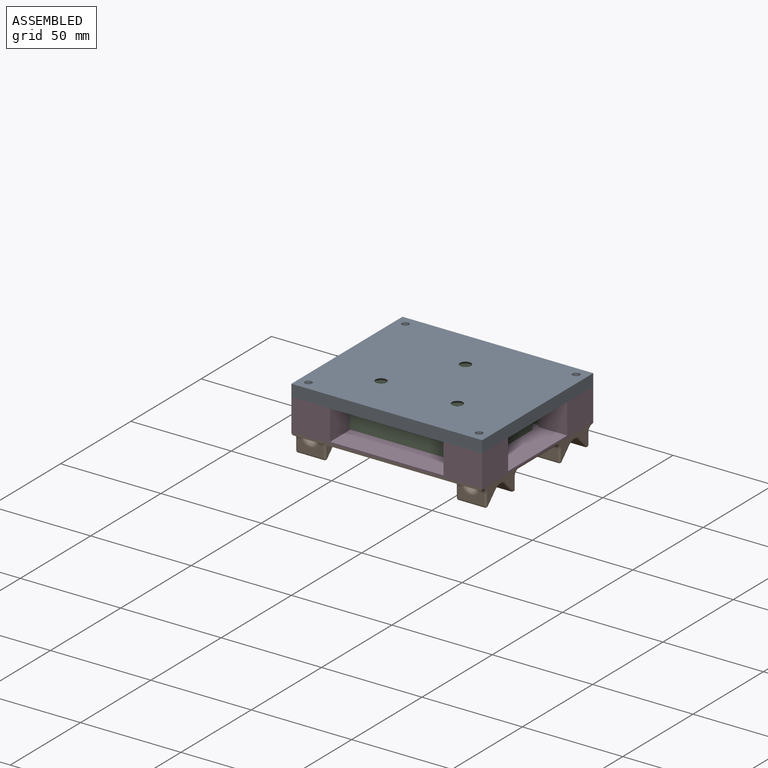
[diagram: assembled view]
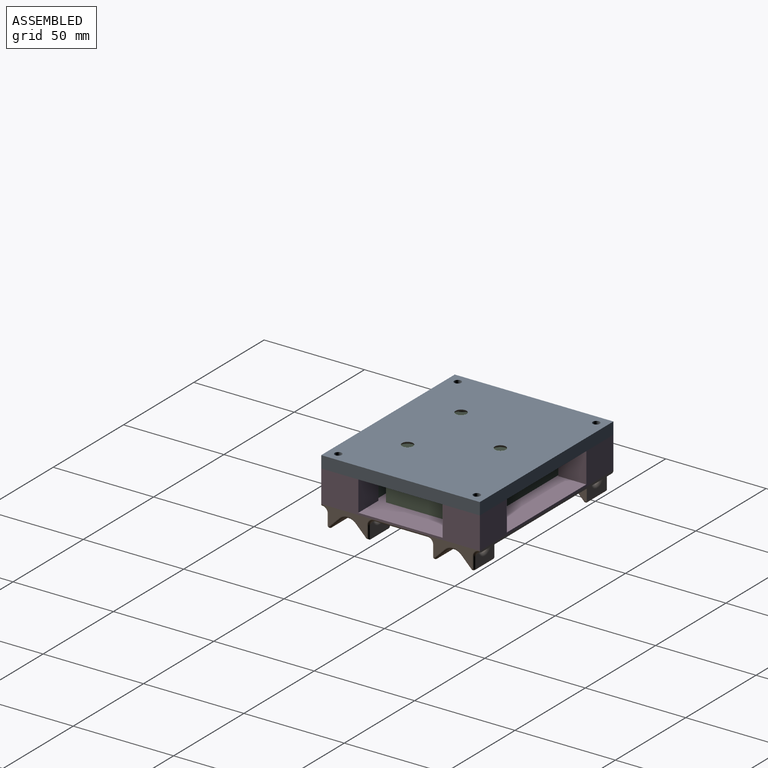
[diagram: assembled view, second angle]
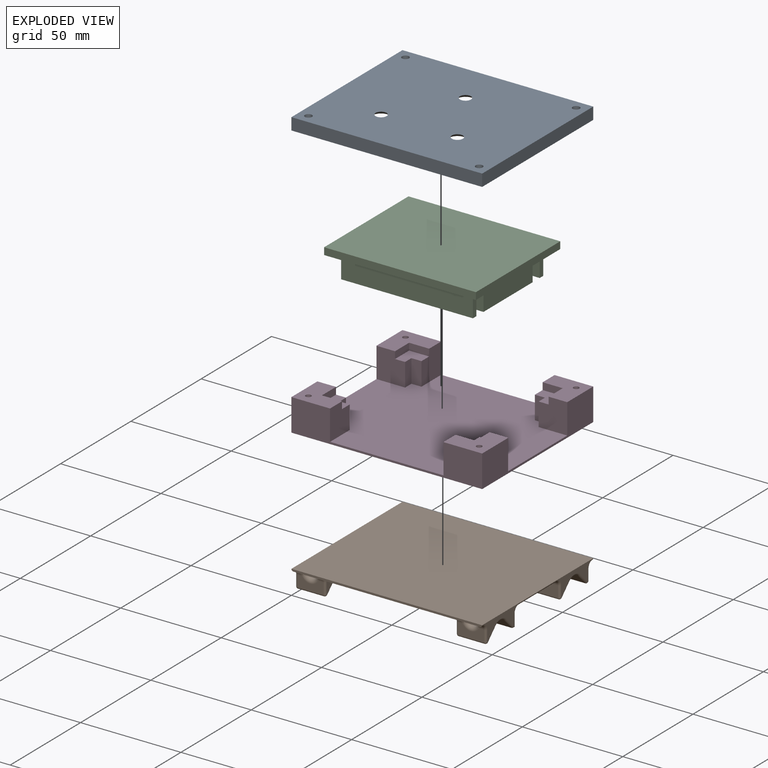
[diagram: exploded view]
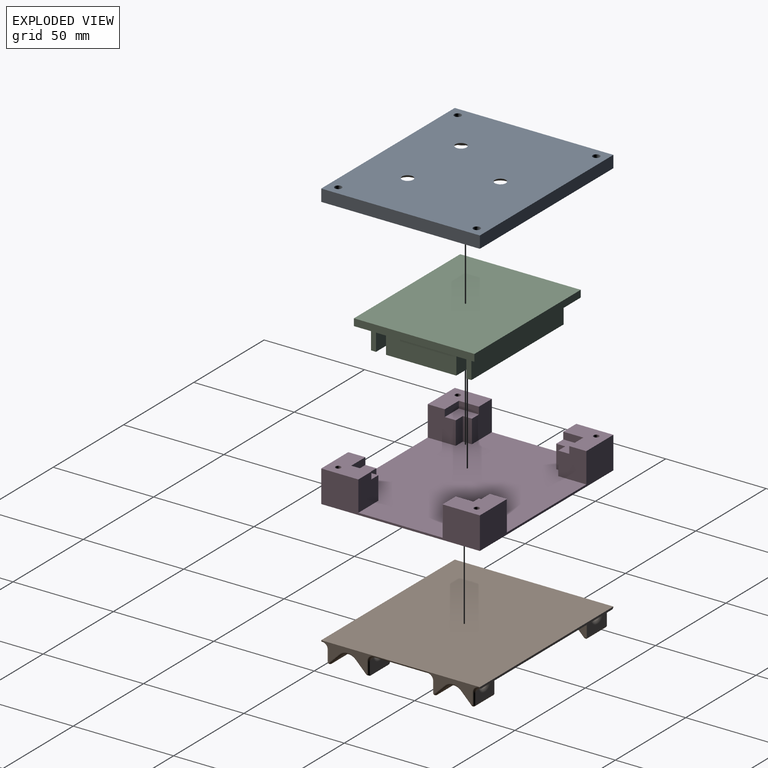
[diagram: exploded view, second angle]
ASSEMBLY  parts=4 mates=6
PART A: 62 faces, bbox 95x79x6.5 mm
  f0: plane 79.05x63.05mm, normal (0,0,1), area 3938.3mm2, adj f11,f12,f13,f14,f15,f16,f17,f18
  f1: plane 95x79mm, normal (0,0,-1), area 7395.2mm2, adj f2,f3,f4,f5,f7,f8,f9,f10
  f2: plane 95x6mm, normal (0,1,0), area 570mm2, adj f1,f3,f5,f6
  f3: plane 79x6mm, normal (-1,0,0), area 474mm2, adj f1,f2,f4,f6
  f4: plane 95x6mm, normal (0,-1,0), area 570mm2, adj f1,f3,f5,f6
  f5: plane 79x6mm, normal (1,0,0), area 474mm2, adj f1,f2,f4,f6
  f6: plane 95x79mm, normal (0,0,1), area 1809mm2, adj f2,f3,f4,f5,f7,f8,f9,f10
  f7: cylinder r=1.75mm len=6mm, axis (0,0,1), area 66mm2, adj f1,f6
  f8: cylinder r=1.75mm len=6mm, axis (0,0,1), area 66mm2, adj f1,f6
  f9: cylinder r=1.75mm len=6mm, axis (0,0,1), area 66mm2, adj f1,f6
  f10: cylinder r=1.75mm len=6mm, axis (0,0,1), area 66mm2, adj f1,f6
  f11: cone r=2.75mm half-angle=45deg, axis (0,0,1), area 46.7mm2, adj f0,f1
  f12: cone r=2.75mm half-angle=45deg, axis (0,0,1), area 46.7mm2, adj f0,f1
  f13: cone r=2.75mm half-angle=45deg, axis (0,0,1), area 46.7mm2, adj f0,f1
  f14: cylinder r=5mm len=48mm, axis (-1,0,0), area 331.2mm2, adj f0,f15,f16,f53
  f15: torus R=0.03mm, axis (0,0,-1), area 32.1mm2, adj f0,f14,f17,f55
  f16: torus R=0.03mm, axis (0,0,-1), area 32.1mm2, adj f0,f14,f18,f51
  f17: cylinder r=5mm len=5.5mm, axis (0,-1,0), area 38mm2, adj f0,f15,f19,f57
  f18: cylinder r=5mm len=5.5mm, axis (0,1,0), area 38mm2, adj f0,f16,f20,f49
  f19: torus R=9.97mm, axis (0,0,1), area 76.3mm2, adj f0,f17,f21,f59
  f20: torus R=9.97mm, axis (0,0,1), area 76.3mm2, adj f0,f18,f22,f47
  f21: cylinder r=5mm len=5.5mm, axis (1,0,0), area 38mm2, adj f0,f19,f23,f61
  f22: cylinder r=5mm len=5.5mm, axis (1,0,0), area 38mm2, adj f0,f20,f24,f45
  f23: torus R=0.03mm, axis (0,0,-1), area 32.1mm2, adj f0,f21,f25,f60
  f24: torus R=0.03mm, axis (0,0,-1), area 32.1mm2, adj f0,f22,f26,f43
  f25: cylinder r=5mm len=32mm, axis (0,-1,0), area 220.8mm2, adj f0,f23,f27,f58
  f26: cylinder r=5mm len=32mm, axis (0,-1,0), area 220.8mm2, adj f0,f24,f28,f41
  f27: torus R=0.03mm, axis (0,0,-1), area 32.1mm2, adj f0,f25,f29,f56
  f28: torus R=0.03mm, axis (0,0,-1), area 32.1mm2, adj f0,f26,f30,f39
  f29: cylinder r=5mm len=5.5mm, axis (1,0,0), area 38mm2, adj f0,f27,f31,f54
  f30: cylinder r=5mm len=5.5mm, axis (1,0,0), area 38mm2, adj f0,f28,f32,f38
  f31: torus R=9.97mm, axis (0,0,1), area 76.3mm2, adj f0,f29,f33,f52
  f32: torus R=9.97mm, axis (0,0,1), area 76.3mm2, adj f0,f30,f34,f40
  f33: cylinder r=5mm len=5.5mm, axis (0,-1,0), area 38mm2, adj f0,f31,f35,f50
  f34: cylinder r=5mm len=5.5mm, axis (0,-1,0), area 38mm2, adj f0,f32,f36,f42
  f35: torus R=0.03mm, axis (0,0,-1), area 32.1mm2, adj f0,f33,f37,f48
  f36: torus R=0.03mm, axis (0,0,-1), area 32.1mm2, adj f0,f34,f37,f44
  f37: cylinder r=5mm len=48mm, axis (-1,0,0), area 331.2mm2, adj f0,f35,f36,f46
  f38: plane 5.5x0.54mm, normal (0,-0.64,0.77), area 3.9mm2, adj f6,f30,f39,f40
  f39: cone r=5.48mm half-angle=50.5deg, axis (0,0,1), area 5.8mm2, adj f6,f28,f38,f41
  f40: cone r=4.52mm half-angle=50.5deg, axis (0,0,-1), area 5.3mm2, adj f6,f32,f38,f42
  f41: plane 32x0.54mm, normal (0.64,0,0.77), area 22.5mm2, adj f6,f26,f39,f43
  f42: plane 5.5x0.54mm, normal (0.64,0,0.77), area 3.9mm2, adj f6,f34,f40,f44
  f43: cone r=5.48mm half-angle=50.5deg, axis (0,0,1), area 5.8mm2, adj f6,f24,f41,f45
  f44: cone r=5.48mm half-angle=50.5deg, axis (0,0,1), area 5.8mm2, adj f6,f36,f42,f46
  f45: plane 5.5x0.54mm, normal (0,0.64,0.77), area 3.9mm2, adj f6,f22,f43,f47
  f46: plane 48x0.54mm, normal (0,-0.64,0.77), area 33.8mm2, adj f6,f37,f44,f48
  f47: cone r=4.52mm half-angle=50.5deg, axis (0,0,-1), area 5.3mm2, adj f6,f20,f45,f49
  f48: cone r=5.48mm half-angle=50.5deg, axis (0,0,1), area 5.8mm2, adj f6,f35,f46,f50
  f49: plane 5.5x0.54mm, normal (0.64,0,0.77), area 3.9mm2, adj f6,f18,f47,f51
  f50: plane 5.5x0.54mm, normal (-0.64,0,0.77), area 3.9mm2, adj f6,f33,f48,f52
  f51: cone r=5.48mm half-angle=50.5deg, axis (0,0,1), area 5.8mm2, adj f6,f16,f49,f53
  f52: cone r=4.52mm half-angle=50.5deg, axis (0,0,-1), area 5.3mm2, adj f6,f31,f50,f54
  f53: plane 48x0.54mm, normal (0,0.64,0.77), area 33.8mm2, adj f6,f14,f51,f55
  f54: plane 5.5x0.54mm, normal (0,-0.64,0.77), area 3.9mm2, adj f6,f29,f52,f56
  f55: cone r=5.48mm half-angle=50.5deg, axis (0,0,1), area 5.8mm2, adj f6,f15,f53,f57
  f56: cone r=5.48mm half-angle=50.5deg, axis (0,0,1), area 5.8mm2, adj f6,f27,f54,f58
  f57: plane 5.5x0.54mm, normal (-0.64,0,0.77), area 3.9mm2, adj f6,f17,f55,f59
  f58: plane 32x0.54mm, normal (-0.64,0,0.77), area 22.5mm2, adj f6,f25,f56,f60
  f59: cone r=4.52mm half-angle=50.5deg, axis (0,0,-1), area 5.3mm2, adj f6,f19,f57,f61
  f60: cone r=5.48mm half-angle=50.5deg, axis (0,0,1), area 5.8mm2, adj f6,f23,f58,f61
  f61: plane 5.5x0.54mm, normal (0,0.64,0.77), area 3.9mm2, adj f6,f21,f59,f60
PART B: 243 faces, bbox 101x86.2x17.1 mm
  f0: plane 8.48x6.5mm, normal (1,0,0), area 28.5mm2, adj f1,f238,f239,f240,f241,f242
  f1: cylinder r=1.5mm len=26mm, axis (0,1,0), area 142.2mm2, adj f0,f2,f235,f236,f237,f238
  f2: plane 14.48x12.5mm, normal (1,0,0), area 28.5mm2, adj f1,f3,f232,f233,f234,f237
  f3: torus R=6mm, axis (1,0,0), area 3.4mm2, adj f2,f4,f232,f235
  f4: cylinder r=5mm len=7.07mm, axis (-1,0,0), area 29.5mm2, adj f3,f5,f230,f231,f235,f242
  f5: plane 13x5.17mm, normal (0,0.71,0.71), area 95.1mm2, adj f4,f6,f226,f227,f228,f241
  f6: cylinder r=1mm len=5.88mm, axis (0,0.71,-0.71), area 11.5mm2, adj f5,f7,f224,f225
  f7: plane 26x9mm, normal (-1,0,0), area 95.4mm2, adj f6,f8,f198,f206,f207,f212,f213,f217
  f8: plane 95x79mm, normal (0,0,-1), area 7505mm2, adj f7,f9,f72,f73,f74,f75,f76,f138
  f9: cylinder r=1mm len=1mm, axis (0,1,0), area 0.4mm2, adj f8,f10,f197,f236
  f10: torus R=3.5mm, axis (-1,0,0), area 7.1mm2, adj f9,f11,f71,f72
  f11: cylinder r=2.5mm len=2.5mm, axis (1,0,0), area 9.1mm2, adj f10,f12,f70,f236
  f12: plane 13x5.5mm, normal (0,1,0), area 58.7mm2, adj f11,f13,f67,f68,f69,f71
  f13: cylinder r=1mm len=5.5mm, axis (0,0,-1), area 8.6mm2, adj f12,f14,f65,f66
  f14: torus R=3.5mm, axis (1,0,0), area 1.3mm2, adj f13,f15,f65,f69
  f15: bspline ~3.35x2.5mm, area 2mm2, adj f14,f16,f69
  f16: cylinder r=1.5mm len=11.89mm, axis (0,1,0), area 22.7mm2, adj f15,f17,f65,f236
  f17: bspline ~5.74x1.62mm, area 5.9mm2, adj f16,f18,f62,f63,f64
  f18: cylinder r=5mm len=7.07mm, axis (-1,0,0), area 29.5mm2, adj f17,f19,f60,f61,f62,f64
  f19: plane 13x5.17mm, normal (0,0.71,0.71), area 95.1mm2, adj f18,f20,f46,f47,f48,f59
  f20: plane 5.5x3.54mm, normal (0,1,0), area 7.6mm2, adj f19,f21,f25,f61
  f21: plane 7.07x3.54mm, normal (1,0,0), area 17.9mm2, adj f20,f22,f59,f236
  f22: plane 5.5x3.54mm, normal (0,-1,0), area 7.6mm2, adj f21,f23,f60,f61
  f23: cylinder r=2.75mm len=5.72mm, axis (0,1,0), area 44mm2, adj f22,f24,f68,f70,f236
  f24: bspline ~5.33x4.1mm, area 8mm2, adj f23,f68,f69,f236
  f25: cylinder r=2.75mm len=5.72mm, axis (0,1,0), area 44mm2, adj f20,f26,f44,f45,f236
  f26: bspline ~5.33x4.1mm, area 8mm2, adj f25,f27,f44,f236
  f27: cylinder r=2.5mm len=4.96mm, axis (-1,0,0), area 10.7mm2, adj f26,f28,f42,f43,f236
  f28: plane 13x5.5mm, normal (0,-1,0), area 58.7mm2, adj f27,f29,f39,f40,f41,f44
  f29: cylinder r=1mm len=5.5mm, axis (0,0,1), area 8.6mm2, adj f28,f30,f31,f72
  f30: torus R=3.5mm, axis (-1,0,0), area 7.1mm2, adj f29,f41,f72,f73
  f31: sphere r=1mm, area 1.6mm2, adj f29,f32,f39
  f32: cylinder r=1mm len=1mm, axis (0,1,0), area 0.1mm2, adj f31,f33,f38,f72
  f33: plane 13x0.09mm, normal (0,0,1), area 1.1mm2, adj f32,f34,f39,f47
  f34: cylinder r=1mm len=1mm, axis (0,-1,0), area 0.1mm2, adj f33,f35,f36,f37
  f35: plane 7.42x6.5mm, normal (1,0,0), area 22mm2, adj f34,f40,f43,f46,f63,f64
  f36: sphere r=1mm, area 1.6mm2, adj f34,f39,f40
  f37: sphere r=1mm, area 0.5mm2, adj f34,f46,f47
  f38: sphere r=1mm, area 0.5mm2, adj f32,f47,f48
  f39: cylinder r=1mm len=13mm, axis (1,0,0), area 20.4mm2, adj f28,f31,f33,f36
  f40: cylinder r=1mm len=5.5mm, axis (0,0,1), area 8.6mm2, adj f28,f35,f36,f43
  f41: cylinder r=2.5mm len=2.5mm, axis (-1,0,0), area 9.1mm2, adj f28,f30,f45,f236
  f42: bspline ~3.35x2.5mm, area 2mm2, adj f27,f43,f63
  f43: torus R=3.5mm, axis (1,0,0), area 1.3mm2, adj f27,f35,f40,f42
  f44: torus R=4.75mm, axis (0,1,0), area 22.2mm2, adj f25,f26,f28,f45
  f45: bspline ~5.33x4.1mm, area 8mm2, adj f25,f41,f44,f236
  f46: cylinder r=1mm len=5.88mm, axis (0,0.71,-0.71), area 11.5mm2, adj f19,f35,f37,f64
  f47: cylinder r=1mm len=13mm, axis (1,0,0), area 10.2mm2, adj f19,f33,f37,f38
  f48: cylinder r=1mm len=5.88mm, axis (0,0.71,-0.71), area 11.5mm2, adj f19,f38,f49,f72
  f49: torus R=6mm, axis (-1,0,0), area 13.2mm2, adj f48,f50,f59,f72
  f50: cylinder r=1mm len=5.88mm, axis (0,0.71,0.71), area 11.5mm2, adj f49,f51,f60,f72
  f51: sphere r=1mm, area 0.8mm2, adj f50,f52,f58
  f52: cylinder r=1mm len=1mm, axis (0,1,0), area 0.1mm2, adj f51,f53,f54,f72
  f53: sphere r=1mm, area 1mm2, adj f52,f67,f71
  f54: plane 13x0.09mm, normal (0,0,1), area 1.1mm2, adj f52,f55,f58,f67
  f55: cylinder r=1mm len=1mm, axis (0,-1,0), area 0.1mm2, adj f54,f56,f65,f66
  f56: sphere r=1mm, area 0.8mm2, adj f55,f57,f58
  f57: cylinder r=1mm len=5.88mm, axis (0,0.71,0.71), area 11.5mm2, adj f56,f60,f62,f65
  f58: cylinder r=1mm len=13mm, axis (-1,0,0), area 10.2mm2, adj f51,f54,f56,f60
  f59: cylinder r=5mm len=7.07mm, axis (-1,0,0), area 29.5mm2, adj f19,f21,f49,f60
  f60: plane 13x5.17mm, normal (0,-0.71,0.71), area 95.1mm2, adj f18,f22,f50,f57,f58,f59
  f61: plane 7.07x3.54mm, normal (-1,0,0), area 17.9mm2, adj f18,f20,f22,f236
  f62: torus R=6mm, axis (1,0,0), area 3.4mm2, adj f17,f18,f57,f65
  f63: cylinder r=1.5mm len=14.11mm, axis (0,1,0), area 50.7mm2, adj f17,f35,f42,f236
  f64: torus R=6mm, axis (1,0,0), area 3.4mm2, adj f17,f18,f35,f46
  f65: plane 7.42x6.5mm, normal (1,0,0), area 22mm2, adj f13,f14,f16,f55,f57,f62
  f66: sphere r=1mm, area 2.1mm2, adj f13,f55,f67
  f67: cylinder r=1mm len=13mm, axis (-1,0,0), area 20.4mm2, adj f12,f53,f54,f66
  f68: torus R=4.75mm, axis (0,1,0), area 22.2mm2, adj f12,f23,f24,f70
  f69: cylinder r=2.5mm len=4.96mm, axis (1,0,0), area 10.7mm2, adj f12,f14,f15,f24,f236
  f70: bspline ~5.33x4.1mm, area 8mm2, adj f11,f23,f68,f236
  f71: cylinder r=1mm len=5.5mm, axis (0,0,-1), area 8.6mm2, adj f10,f12,f53,f72
  f72: plane 26x9mm, normal (-1,0,0), area 95.4mm2, adj f8,f10,f29,f30,f32,f48,f49,f50
  f73: cylinder r=1mm len=26.5mm, axis (0,1,0), area 41.6mm2, adj f8,f30,f198,f236
  f74: cylinder r=1mm len=1mm, axis (0,-1,0), area 0.4mm2, adj f8,f75,f218,f236
  f75: plane 95x1mm, normal (0,-1,0), area 94.6mm2, adj f8,f74,f76,f236
  f76: cylinder r=1mm len=1mm, axis (0,1,0), area 0.4mm2, adj f8,f75,f77,f236
  f77: torus R=3.5mm, axis (-1,0,0), area 7.1mm2, adj f76,f78,f137,f138
  f78: cylinder r=2.5mm len=2.5mm, axis (-1,0,0), area 9.1mm2, adj f77,f79,f136,f236
  f79: plane 13x5.5mm, normal (0,-1,0), area 58.7mm2, adj f78,f80,f133,f134,f135,f137
  f80: cylinder r=1mm len=5.5mm, axis (0,0,-1), area 8.6mm2, adj f79,f81,f131,f132
  f81: torus R=3.5mm, axis (1,0,0), area 1.3mm2, adj f80,f82,f131,f135
  f82: bspline ~3.46x2.5mm, area 2mm2, adj f81,f83,f135
  f83: cylinder r=1.5mm len=26mm, axis (0,-1,0), area 106.7mm2, adj f82,f84,f129,f130,f131,f236
  f84: bspline ~4.86x1.28mm, area 5.9mm2, adj f83,f85,f127,f128
  f85: cylinder r=5mm len=7.07mm, axis (-1,0,0), area 29.5mm2, adj f84,f86,f125,f126,f127,f128
  f86: plane 13x5.17mm, normal (0,-0.71,0.71), area 95.1mm2, adj f85,f87,f117,f122,f123,f124
  f87: cylinder r=1mm len=5.88mm, axis (0,-0.71,-0.71), area 11.5mm2, adj f86,f88,f98,f138
  f88: torus R=6mm, axis (-1,0,0), area 13.2mm2, adj f87,f89,f117,f138
  f89: cylinder r=1mm len=5.88mm, axis (0,-0.71,0.71), area 11.5mm2, adj f88,f90,f125,f138
  f90: sphere r=1mm, area 0.8mm2, adj f89,f91,f97
  f91: cylinder r=1mm len=1mm, axis (0,-1,0), area 0.1mm2, adj f90,f92,f93,f138
  f92: sphere r=1mm, area 1mm2, adj f91,f133,f137
  f93: plane 13x0.09mm, normal (0,0,1), area 1.1mm2, adj f91,f94,f97,f133
  f94: cylinder r=1mm len=1mm, axis (0,1,0), area 0.1mm2, adj f93,f95,f131,f132
  f95: sphere r=1mm, area 0.8mm2, adj f94,f96,f97
  f96: cylinder r=1mm len=5.88mm, axis (0,-0.71,0.71), area 11.5mm2, adj f95,f125,f127,f131
  f97: cylinder r=1mm len=13mm, axis (1,0,0), area 10.2mm2, adj f90,f93,f95,f125
  f98: sphere r=1mm, area 1.1mm2, adj f87,f99,f124
  f99: cylinder r=1mm len=1mm, axis (0,-1,0), area 0.1mm2, adj f98,f100,f116,f138
  f100: plane 13x0.09mm, normal (0,0,1), area 1.1mm2, adj f99,f101,f115,f124
  f101: cylinder r=1mm len=1mm, axis (0,1,0), area 0.1mm2, adj f100,f102,f114,f129
  f102: sphere r=1mm, area 2.1mm2, adj f101,f103,f115
  f103: cylinder r=1mm len=5.5mm, axis (0,0,1), area 8.6mm2, adj f102,f104,f113,f129
  f104: torus R=3.5mm, axis (1,0,0), area 1.3mm2, adj f103,f105,f129,f130
  f105: cylinder r=2.5mm len=4.96mm, axis (1,0,0), area 10.7mm2, adj f104,f106,f113,f130,f236
  f106: bspline ~5.33x4.1mm, area 8mm2, adj f105,f107,f112,f236
  f107: cylinder r=2.75mm len=5.72mm, axis (0,1,0), area 44mm2, adj f106,f108,f112,f122,f236
  f108: bspline ~5.33x4.1mm, area 8mm2, adj f107,f109,f112,f236
  f109: cylinder r=2.5mm len=2.5mm, axis (1,0,0), area 9.1mm2, adj f108,f110,f113,f236
  f110: torus R=3.5mm, axis (-1,0,0), area 7.1mm2, adj f109,f111,f138,f139
  f111: cylinder r=1mm len=5.5mm, axis (0,0,1), area 8.6mm2, adj f110,f113,f116,f138
  f112: torus R=4.75mm, axis (0,1,0), area 22.2mm2, adj f106,f107,f108,f113
  f113: plane 13x5.5mm, normal (0,1,0), area 58.7mm2, adj f103,f105,f109,f111,f112,f115
  f114: sphere r=1mm, area 0.8mm2, adj f101,f123,f124
  f115: cylinder r=1mm len=13mm, axis (-1,0,0), area 20.4mm2, adj f100,f102,f113,f116
  f116: sphere r=1mm, area 2.1mm2, adj f99,f111,f115
  f117: cylinder r=5mm len=7.07mm, axis (-1,0,0), area 29.5mm2, adj f86,f88,f118,f125
  f118: plane 7.07x3.54mm, normal (-1,0,0), area 17.9mm2, adj f117,f119,f122,f236
  f119: plane 5.5x3.54mm, normal (0,1,0), area 7.6mm2, adj f118,f120,f125,f126
  f120: cylinder r=2.75mm len=5.72mm, axis (0,1,0), area 44mm2, adj f119,f121,f134,f136,f236
  f121: bspline ~5.33x4.1mm, area 8mm2, adj f120,f134,f135,f236
  f122: plane 5.5x3.54mm, normal (0,-1,0), area 7.6mm2, adj f86,f107,f118,f126
  f123: cylinder r=1mm len=5.88mm, axis (0,-0.71,-0.71), area 11.5mm2, adj f86,f114,f128,f129
  f124: cylinder r=1mm len=13mm, axis (-1,0,0), area 10.2mm2, adj f86,f98,f100,f114
  f125: plane 13x5.17mm, normal (0,0.71,0.71), area 95.1mm2, adj f85,f89,f96,f97,f117,f119
  f126: plane 7.07x3.54mm, normal (1,0,0), area 17.9mm2, adj f85,f119,f122,f236
  f127: torus R=6mm, axis (1,0,0), area 3.4mm2, adj f84,f85,f96,f131
  f128: torus R=6mm, axis (1,0,0), area 3.4mm2, adj f84,f85,f123,f129
  f129: plane 7.42x6.5mm, normal (-1,0,0), area 22mm2, adj f83,f101,f103,f104,f123,f128
  f130: bspline ~3.35x2.5mm, area 2mm2, adj f83,f104,f105
  f131: plane 7.42x6.5mm, normal (-1,0,0), area 22mm2, adj f80,f81,f83,f94,f96,f127
  f132: sphere r=1mm, area 1.6mm2, adj f80,f94,f133
  f133: cylinder r=1mm len=13mm, axis (1,0,0), area 20.4mm2, adj f79,f92,f93,f132
  f134: torus R=4.75mm, axis (0,1,0), area 22.2mm2, adj f79,f120,f121,f136
  f135: cylinder r=2.5mm len=4.96mm, axis (-1,0,0), area 10.7mm2, adj f79,f81,f82,f121,f236
  f136: bspline ~5.33x4.1mm, area 8mm2, adj f78,f120,f134,f236
  f137: cylinder r=1mm len=5.5mm, axis (0,0,-1), area 8.6mm2, adj f77,f79,f92,f138
  f138: plane 26x9mm, normal (1,0,0), area 95.4mm2, adj f8,f77,f87,f88,f89,f91,f99,f110
  f139: cylinder r=1mm len=26.5mm, axis (0,-1,0), area 41.6mm2, adj f8,f110,f140,f236
  f140: torus R=3.5mm, axis (-1,0,0), area 7.1mm2, adj f139,f141,f194,f195
  f141: cylinder r=2.5mm len=2.5mm, axis (-1,0,0), area 9.1mm2, adj f140,f142,f193,f236
  f142: plane 14x6.5mm, normal (0,-1,0), area 77.9mm2, adj f141,f143,f189,f190,f191,f192,f194
  f143: plane 8.48x6.5mm, normal (-1,0,0), area 28.5mm2, adj f142,f144,f187,f188,f189,f192
  f144: cylinder r=1.5mm len=26mm, axis (0,-1,0), area 82.6mm2, adj f143,f145,f185,f186,f192,f236
  f145: plane 13.42x12.5mm, normal (-1,0,0), area 22mm2, adj f144,f146,f181,f182,f183,f184
  f146: cylinder r=1mm len=1mm, axis (0,1,0), area 0.1mm2, adj f145,f147,f179,f180
  f147: sphere r=1mm, area 2.1mm2, adj f146,f148,f184
  f148: cylinder r=1mm len=13mm, axis (-1,0,0), area 20.4mm2, adj f147,f149,f178,f179
  f149: sphere r=1mm, area 2.1mm2, adj f148,f150,f177
  f150: cylinder r=1mm len=1mm, axis (0,-1,0), area 0.1mm2, adj f149,f151,f179,f195
  f151: sphere r=1mm, area 1.1mm2, adj f150,f152,f176
  f152: cylinder r=1mm len=5.88mm, axis (0,-0.71,-0.71), area 11.5mm2, adj f151,f153,f175,f195
  f153: torus R=6mm, axis (-1,0,0), area 13.2mm2, adj f152,f154,f174,f195
  f154: cylinder r=1mm len=5.88mm, axis (0,-0.71,0.71), area 11.5mm2, adj f153,f155,f159,f195
  f155: sphere r=1mm, area 0.8mm2, adj f154,f156,f157
  f156: cylinder r=1mm len=1.09mm, axis (0,-1,0), area 1.1mm2, adj f155,f190,f194,f195
  f157: cylinder r=1mm len=13mm, axis (1,0,0), area 10.2mm2, adj f155,f158,f159,f190
  f158: sphere r=1mm, area 0.8mm2, adj f157,f188,f189
  f159: plane 13x5.17mm, normal (0,0.71,0.71), area 95.1mm2, adj f154,f157,f160,f171,f174,f188
  f160: cylinder r=5mm len=7.07mm, axis (-1,0,0), area 29.5mm2, adj f159,f161,f175,f182,f186,f187
  f161: plane 7.07x3.54mm, normal (1,0,0), area 17.9mm2, adj f160,f162,f171,f236
  f162: plane 5.5x3.54mm, normal (0,-1,0), area 7.6mm2, adj f161,f163,f164,f175
  f163: plane 7.07x3.54mm, normal (-1,0,0), area 17.9mm2, adj f162,f171,f174,f236
  f164: cylinder r=2.75mm len=5.72mm, axis (0,1,0), area 44mm2, adj f162,f165,f167,f168,f236
  f165: bspline ~5.33x4.1mm, area 8mm2, adj f164,f166,f167,f236
  f166: cylinder r=2.5mm len=4.96mm, axis (1,0,0), area 10.7mm2, adj f165,f178,f183,f185,f236
  f167: torus R=4.75mm, axis (0,1,0), area 22.2mm2, adj f164,f165,f168,f178
  f168: bspline ~5.33x4.1mm, area 8mm2, adj f164,f167,f169,f236
  f169: cylinder r=2.5mm len=2.5mm, axis (1,0,0), area 9.1mm2, adj f168,f170,f178,f236
  f170: torus R=3.5mm, axis (-1,0,0), area 7.1mm2, adj f169,f177,f195,f196
  f171: plane 5.5x3.54mm, normal (0,1,0), area 7.6mm2, adj f159,f161,f163,f172
  f172: cylinder r=2.75mm len=5.72mm, axis (0,1,0), area 44mm2, adj f171,f173,f191,f193,f236
  f173: bspline ~5.33x4.1mm, area 8mm2, adj f172,f191,f192,f236
  f174: cylinder r=5mm len=7.07mm, axis (-1,0,0), area 29.5mm2, adj f153,f159,f163,f175
  f175: plane 13x5.17mm, normal (0,-0.71,0.71), area 95.1mm2, adj f152,f160,f162,f174,f176,f181
  f176: cylinder r=1mm len=13mm, axis (-1,0,0), area 10.2mm2, adj f151,f175,f179,f180
  f177: cylinder r=1mm len=5.5mm, axis (0,0,1), area 8.6mm2, adj f149,f170,f178,f195
  f178: plane 13x5.5mm, normal (0,1,0), area 58.7mm2, adj f148,f166,f167,f169,f177,f184
  f179: plane 13x0.09mm, normal (0,0,1), area 1.1mm2, adj f146,f148,f150,f176
  f180: sphere r=1mm, area 0.8mm2, adj f146,f176,f181
  f181: cylinder r=1mm len=5.88mm, axis (0,-0.71,-0.71), area 11.5mm2, adj f145,f175,f180,f182
  f182: torus R=6mm, axis (1,0,0), area 3.4mm2, adj f145,f160,f181,f186
  f183: torus R=3.5mm, axis (1,0,0), area 1.3mm2, adj f145,f166,f184,f185
  f184: cylinder r=1mm len=5.5mm, axis (0,0,1), area 8.6mm2, adj f145,f147,f178,f183
  f185: bspline ~3.39x2.5mm, area 2mm2, adj f144,f166,f183
  f186: bspline ~5.25x1.38mm, area 5.9mm2, adj f144,f160,f182,f187
  f187: torus R=6mm, axis (1,0,0), area 3.4mm2, adj f143,f160,f186,f188
  f188: cylinder r=1mm len=5.88mm, axis (0,-0.71,0.71), area 11.5mm2, adj f143,f158,f159,f187
  f189: cylinder r=1mm len=1.09mm, axis (0,1,0), area 1.7mm2, adj f142,f143,f158,f190
  f190: plane 13x1.09mm, normal (0,0,1), area 14.1mm2, adj f142,f156,f157,f189
  f191: torus R=4.75mm, axis (0,1,0), area 22.2mm2, adj f142,f172,f173,f193
  f192: cylinder r=2.5mm len=4.96mm, axis (-1,0,0), area 13.9mm2, adj f142,f143,f144,f173,f236
  f193: bspline ~5.33x4.1mm, area 8mm2, adj f141,f172,f191,f236
  f194: cylinder r=1mm len=6.5mm, axis (0,0,-1), area 9.4mm2, adj f140,f142,f156,f195
  f195: plane 26x9mm, normal (1,0,0), area 95.4mm2, adj f8,f140,f150,f152,f153,f154,f156,f170
  f196: cylinder r=1mm len=1mm, axis (0,-1,0), area 0.4mm2, adj f8,f170,f197,f236
  f197: plane 95x1mm, normal (0,1,0), area 94.6mm2, adj f8,f9,f196,f236
  f198: torus R=3.5mm, axis (-1,0,0), area 7.1mm2, adj f7,f73,f199,f206
  f199: cylinder r=2.5mm len=2.5mm, axis (1,0,0), area 9.1mm2, adj f198,f200,f234,f236
  f200: bspline ~5.33x4.1mm, area 8mm2, adj f199,f201,f205,f236
  f201: cylinder r=2.75mm len=5.72mm, axis (0,1,0), area 44mm2, adj f200,f202,f203,f205,f236
  f202: bspline ~5.33x4.1mm, area 8mm2, adj f201,f205,f236,f237
  f203: plane 5.5x3.54mm, normal (0,-1,0), area 7.6mm2, adj f201,f204,f230,f231
  f204: plane 7.07x3.54mm, normal (1,0,0), area 17.9mm2, adj f203,f226,f227,f236
  f205: torus R=4.75mm, axis (0,1,0), area 22.2mm2, adj f200,f201,f202,f234
  f206: cylinder r=1mm len=6.5mm, axis (0,0,-1), area 9.4mm2, adj f7,f198,f207,f234
  f207: cylinder r=1mm len=1.09mm, axis (0,1,0), area 1.1mm2, adj f7,f206,f208,f211
  f208: plane 13x1.09mm, normal (0,0,1), area 14.1mm2, adj f207,f209,f233,f234
  f209: cylinder r=1mm len=13mm, axis (-1,0,0), area 10.2mm2, adj f208,f210,f211,f230
  f210: sphere r=1mm, area 0.8mm2, adj f209,f232,f233
  f211: sphere r=1mm, area 0.8mm2, adj f207,f209,f212
  f212: cylinder r=1mm len=5.88mm, axis (0,0.71,0.71), area 11.5mm2, adj f7,f211,f224,f230
  f213: cylinder r=1mm len=1mm, axis (0,1,0), area 0.1mm2, adj f7,f214,f216,f225
  f214: plane 13x0.09mm, normal (0,0,1), area 1.1mm2, adj f213,f215,f228,f240
  f215: cylinder r=1mm len=14mm, axis (1,0,0), area 21.2mm2, adj f214,f216,f239,f240
  f216: sphere r=1mm, area 1.6mm2, adj f213,f215,f217
  f217: cylinder r=1mm len=5.5mm, axis (0,0,1), area 8.6mm2, adj f7,f216,f218,f239
  f218: torus R=3.5mm, axis (-1,0,0), area 7.1mm2, adj f7,f74,f217,f219
  f219: cylinder r=2.5mm len=2.5mm, axis (-1,0,0), area 9.1mm2, adj f218,f220,f236,f239
  f220: bspline ~5.33x4.1mm, area 8mm2, adj f219,f221,f223,f236
  f221: torus R=4.75mm, axis (0,1,0), area 22.2mm2, adj f220,f222,f223,f239
  f222: bspline ~5.33x4.1mm, area 8mm2, adj f221,f223,f236,f238
  f223: cylinder r=2.75mm len=5.72mm, axis (0,1,0), area 44mm2, adj f220,f221,f222,f227,f236
  f224: torus R=6mm, axis (-1,0,0), area 13.2mm2, adj f6,f7,f212,f226
  f225: sphere r=1mm, area 1.1mm2, adj f6,f213,f228
  f226: cylinder r=5mm len=7.07mm, axis (-1,0,0), area 29.5mm2, adj f5,f204,f224,f230
  f227: plane 5.5x3.54mm, normal (0,1,0), area 7.6mm2, adj f5,f204,f223,f231
  f228: cylinder r=1mm len=13mm, axis (1,0,0), area 10.2mm2, adj f5,f214,f225,f229
  f229: sphere r=1mm, area 0.8mm2, adj f228,f240,f241
  f230: plane 13x5.17mm, normal (0,-0.71,0.71), area 95.1mm2, adj f4,f203,f209,f212,f226,f232
  f231: plane 7.07x3.54mm, normal (-1,0,0), area 17.9mm2, adj f4,f203,f227,f236
  f232: cylinder r=1mm len=5.88mm, axis (0,0.71,0.71), area 11.5mm2, adj f2,f3,f210,f230
  f233: cylinder r=1mm len=1.09mm, axis (0,-1,0), area 1.7mm2, adj f2,f208,f210,f234
  f234: plane 14x6.5mm, normal (0,1,0), area 77.9mm2, adj f2,f199,f205,f206,f208,f233,f237
  f235: bspline ~5.74x1.62mm, area 5.9mm2, adj f1,f3,f4,f242
  f236: plane 99x85mm, normal (0,0,1), area 6338.1mm2, adj f1,f9,f11,f16,f21,f23,f24,f25
  f237: cylinder r=2.5mm len=4.96mm, axis (1,0,0), area 13.9mm2, adj f1,f2,f202,f234,f236
  f238: cylinder r=2.5mm len=4.96mm, axis (-1,0,0), area 13.9mm2, adj f0,f1,f222,f236,f239
  f239: plane 14x5.5mm, normal (0,-1,0), area 64.2mm2, adj f0,f215,f217,f219,f221,f238
  f240: cylinder r=1mm len=1.09mm, axis (0,-1,0), area 1.1mm2, adj f0,f214,f215,f229
  f241: cylinder r=1mm len=5.88mm, axis (0,0.71,-0.71), area 11.5mm2, adj f0,f5,f229,f242
  f242: torus R=6mm, axis (1,0,0), area 3.4mm2, adj f0,f4,f235,f241
PART C: 19 faces, bbox 75.6x60x15 mm
  f0: plane 65.6x2.5mm, normal (0,0,1), area 164mm2, adj f8,f10,f11,f17
  f1: plane 65.6x35mm, normal (0,0,1), area 2296mm2, adj f8,f10,f14,f16
  f2: plane 75.6x3.5mm, normal (0,1,0), area 264.6mm2, adj f3,f5,f6,f7
  f3: plane 60x3.5mm, normal (-1,0,0), area 210mm2, adj f2,f4,f6,f7
  f4: plane 75.6x3.5mm, normal (0,-1,0), area 264.6mm2, adj f3,f5,f6,f7
  f5: plane 60x3.5mm, normal (1,0,0), area 210mm2, adj f2,f4,f6,f7
  f6: plane 75.6x60mm, normal (0,0,1), area 1256mm2, adj f2,f3,f4,f5,f8,f9,f10,f11
  f7: plane 75.6x60mm, normal (0,0,-1), area 4536mm2, adj f2,f3,f4,f5
  f8: plane 50x11.5mm, normal (-1,0,0), area 465mm2, adj f0,f1,f6,f9,f11,f12,f13,f14
  f9: plane 65.6x11.5mm, normal (0,-1,0), area 754.4mm2, adj f6,f8,f10,f12
  f10: plane 50x11.5mm, normal (1,0,0), area 465mm2, adj f0,f1,f6,f9,f11,f12,f13,f14
  f11: plane 65.6x11.5mm, normal (0,1,0), area 754.4mm2, adj f0,f6,f8,f10
  f12: plane 65.6x2.5mm, normal (0,0,1), area 164mm2, adj f8,f9,f10,f13
  f13: plane 65.6x11mm, normal (0,1,0), area 721.6mm2, adj f8,f10,f12,f15
  f14: plane 65.6x11mm, normal (0,-1,0), area 721.6mm2, adj f1,f8,f10,f15
  f15: plane 65.6x5mm, normal (0,0,1), area 328mm2, adj f8,f10,f13,f14
  f16: plane 65.6x11mm, normal (0,1,0), area 721.6mm2, adj f1,f8,f10,f18
  f17: plane 65.6x11mm, normal (0,-1,0), area 721.6mm2, adj f0,f8,f10,f18
  f18: plane 65.6x5mm, normal (0,0,1), area 328mm2, adj f8,f10,f16,f17
PART D: 42 faces, bbox 95x79x16 mm
  f0: plane 95x79mm, normal (0,0,-1), area 7482.1mm2, adj f3,f8,f11,f12,f38,f39,f40,f41
  f1: plane 19.25x18.5mm, normal (0,0,1), area 250.4mm2, adj f3,f4,f12,f16,f32,f36,f40
  f2: plane 10x10mm, normal (0,0,1), area 77.5mm2, adj f4,f5,f16,f19,f32,f36
  f3: plane 95x16mm, normal (0,1,0), area 672.5mm2, adj f0,f1,f11,f12,f13,f25,f36,f37
  f4: plane 10x3.5mm, normal (0,-1,0), area 35mm2, adj f1,f2,f16,f36
  f5: plane 11.5x5mm, normal (0,-1,0), area 57.5mm2, adj f2,f19,f25,f36
  f6: plane 19.25x18.5mm, normal (0,0,1), area 250.4mm2, adj f8,f9,f12,f23,f33,f34,f39
  f7: plane 10x10mm, normal (0,0,1), area 77.5mm2, adj f9,f10,f23,f26,f33,f34
  f8: plane 95x16mm, normal (0,-1,0), area 672.5mm2, adj f0,f6,f11,f12,f14,f25,f34,f35
  f9: plane 10x3.5mm, normal (0,1,0), area 35mm2, adj f6,f7,f23,f34
  f10: plane 11.5x5mm, normal (0,1,0), area 57.5mm2, adj f7,f25,f26,f34
  f11: plane 79x16mm, normal (-1,0,0), area 634mm2, adj f0,f3,f8,f13,f14,f25,f30,f31
  f12: plane 79x16mm, normal (1,0,0), area 634mm2, adj f0,f1,f3,f6,f8,f25,f32,f33
  f13: plane 19.25x18.5mm, normal (0,0,1), area 250.4mm2, adj f3,f11,f15,f24,f30,f37,f41
  f14: plane 19.25x18.5mm, normal (0,0,1), area 250.4mm2, adj f8,f11,f21,f22,f31,f35,f38
  f15: plane 10x3.5mm, normal (1,0,0), area 35mm2, adj f13,f17,f24,f30
  f16: plane 10x3.5mm, normal (-1,0,0), area 35mm2, adj f1,f2,f4,f32
  f17: plane 10x10mm, normal (0,0,1), area 77.5mm2, adj f15,f20,f24,f27,f30,f37
  f18: plane 10x10mm, normal (0,0,1), area 77.5mm2, adj f21,f22,f28,f29,f31,f35
  f19: plane 11.5x4.5mm, normal (-1,0,0), area 51.8mm2, adj f2,f5,f25,f32
  f20: plane 11.5x4.5mm, normal (1,0,0), area 51.8mm2, adj f17,f25,f27,f30
  f21: plane 10x3.5mm, normal (1,0,0), area 35mm2, adj f14,f18,f22,f31
  f22: plane 10x3.5mm, normal (0,1,0), area 35mm2, adj f14,f18,f21,f35
  f23: plane 10x3.5mm, normal (-1,0,0), area 35mm2, adj f6,f7,f9,f33
  f24: plane 10x3.5mm, normal (0,-1,0), area 35mm2, adj f13,f15,f17,f37
  f25: plane 95x79mm, normal (0,0,1), area 6170.5mm2, adj f3,f5,f8,f10,f11,f12,f19,f20
  f26: plane 11.5x4.5mm, normal (-1,0,0), area 51.8mm2, adj f7,f10,f25,f33
  f27: plane 11.5x5mm, normal (0,-1,0), area 57.5mm2, adj f17,f20,f25,f37
  f28: plane 11.5x4.5mm, normal (1,0,0), area 51.8mm2, adj f18,f25,f29,f31
  f29: plane 11.5x5mm, normal (0,1,0), area 57.5mm2, adj f18,f25,f28,f35
  f30: plane 15x14.25mm, normal (0,-1,0), area 196.3mm2, adj f11,f13,f15,f17,f20,f25
  f31: plane 15x14.25mm, normal (0,1,0), area 196.3mm2, adj f11,f14,f18,f21,f25,f28
  f32: plane 15x14.25mm, normal (0,-1,0), area 196.3mm2, adj f1,f2,f12,f16,f19,f25
  f33: plane 15x14.25mm, normal (0,1,0), area 196.3mm2, adj f6,f7,f12,f23,f25,f26
  f34: plane 15x14mm, normal (-1,0,0), area 190.8mm2, adj f6,f7,f8,f9,f10,f25
  f35: plane 15x14mm, normal (1,0,0), area 190.8mm2, adj f8,f14,f18,f22,f25,f29
  f36: plane 15x14mm, normal (-1,0,0), area 190.8mm2, adj f1,f2,f3,f4,f5,f25
  f37: plane 15x14mm, normal (1,0,0), area 190.8mm2, adj f3,f13,f17,f24,f25,f27
  f38: cylinder r=1.35mm len=16mm, axis (0,0,1), area 135.7mm2, adj f0,f14
  f39: cylinder r=1.35mm len=16mm, axis (0,0,1), area 135.7mm2, adj f0,f6
  f40: cylinder r=1.35mm len=16mm, axis (0,0,1), area 135.7mm2, adj f0,f1
  f41: cylinder r=1.35mm len=16mm, axis (0,0,1), area 135.7mm2, adj f0,f13
PLACE A rot(axis=(0,-1,0),180deg) t=(95,0,22)mm
PLACE B rot(axis=(1,0,0),180deg) t=(0,79,0)mm
PLACE C rot(axis=(1,0,0),180deg) t=(9.65,69.47,16)mm
PLACE D at identity
MATE planar A.f7 <-> D.f14  axis (0,0,-1) through (90,5,16)mm
MATE planar B.f197 <-> D.f8  axis (0,-1,0) through (47.5,0,-0.5)mm
MATE cylindrical A.f7 <-> D.f39  axis (0,0,1) through (90,5,22)mm
MATE cylindrical A.f8 <-> D.f41  axis (0,0,-1) through (5,74,22)mm
MATE planar D.f17 <-> C.f6  axis (0,0,1) through (13.52,66.3,12.5)mm
MATE planar D.f0 <-> B.f8  axis (0,0,-1) through (47.5,39.5,0)mm
